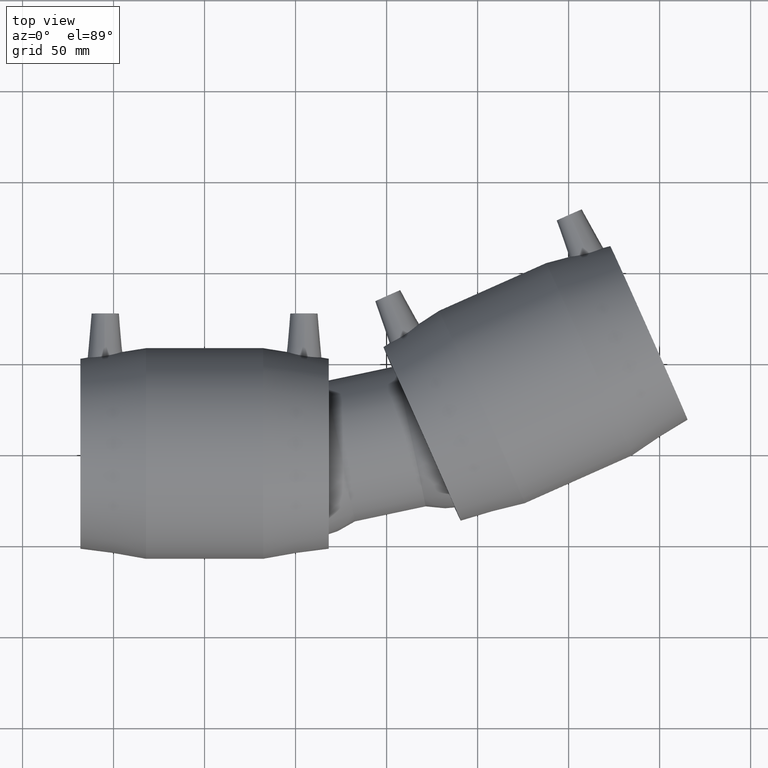
[diagram: clean part render]
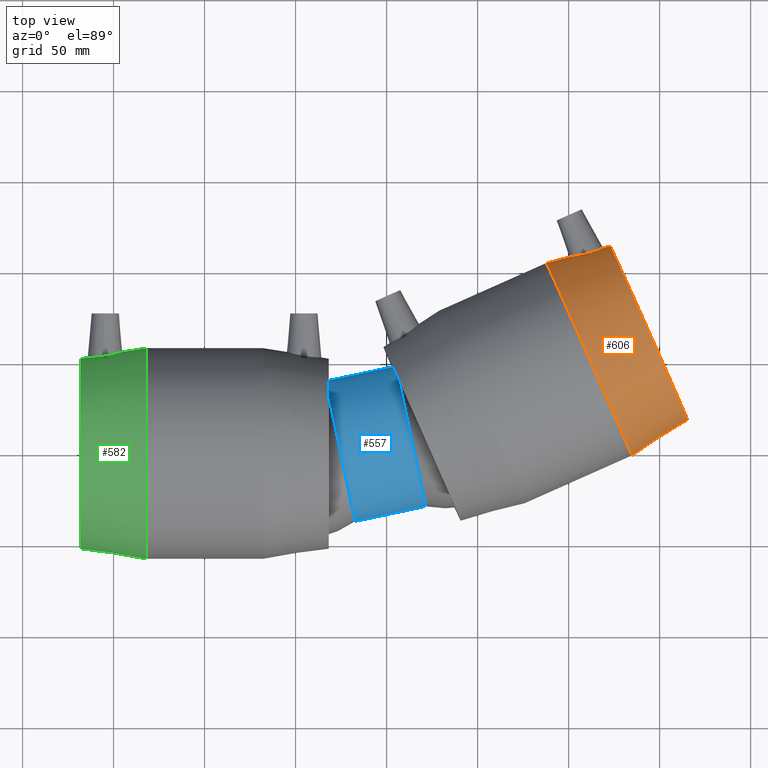
[diagram: same view with three faces highlighted in distinct colors, each labeled with its STEP entity id]
A machine part, top view with three faces highlighted in distinct colors.
Their STEP definitions:

[orange] entity #606 — the highlighted conical surface has half-angle 9.152 deg.
#24=CONICAL_SURFACE('',#710,55.1,9.15233904940198);
#113=FACE_BOUND('',#271,.T.);
#114=FACE_BOUND('',#272,.T.);
#168=FACE_OUTER_BOUND('',#270,.T.);
#270=EDGE_LOOP('',(#546));
#271=EDGE_LOOP('',(#547));
#272=EDGE_LOOP('',(#548));
#280=B_SPLINE_CURVE_WITH_KNOTS('',3,(#1328,#1329,#1330,#1331,#1332,#1333,
#1334,#1335,#1336,#1337,#1338,#1339,#1340,#1341,#1342,#1343,#1344,#1345,
#1346,#1347,#1348,#1349,#1350,#1351,#1352,#1353,#1354,#1355,#1356,#1357,
#1358,#1359,#1360,#1361),.UNSPECIFIED.,.T.,.F.,(4,2,2,2,2,2,2,2,2,2,2,2,
2,2,2,2,4),(0.,0.352228223604337,0.704456447208673,1.05741365981009,1.4103708724115,
1.76332808501292,2.11628529761434,2.46851352121867,2.82074174482301,3.19573183374223,
3.57072192266146,3.93684083698005,4.30295975129865,4.66907866561724,5.03519757993584,
5.41018766885506,5.78517775777429),.UNSPECIFIED.);
#320=CIRCLE('',#692,58.);
#328=CIRCLE('',#709,52.2);
#370=VERTEX_POINT('',#1327);
#372=VERTEX_POINT('',#1366);
#380=VERTEX_POINT('',#1391);
#426=EDGE_CURVE('',#370,#370,#280,.T.);
#428=EDGE_CURVE('',#372,#372,#320,.T.);
#436=EDGE_CURVE('',#380,#380,#328,.T.);
#546=ORIENTED_EDGE('',*,*,#428,.T.);
#547=ORIENTED_EDGE('',*,*,#426,.F.);
#548=ORIENTED_EDGE('',*,*,#436,.F.);
#606=ADVANCED_FACE('',(#168,#113,#114),#24,.T.);
#692=AXIS2_PLACEMENT_3D('',#1367,#879,#880);
#709=AXIS2_PLACEMENT_3D('',#1392,#913,#914);
#710=AXIS2_PLACEMENT_3D('',#1393,#915,#916);
#879=DIRECTION('center_axis',(0.913545457642601,0.406736643075801,1.19788532833232E-16));
#880=DIRECTION('ref_axis',(1.19788532833232E-16,2.54618386665284E-17,-1.));
#913=DIRECTION('center_axis',(0.913545457642601,0.406736643075801,1.19788532833232E-16));
#914=DIRECTION('ref_axis',(1.19788532833232E-16,2.54618386665284E-17,-1.));
#915=DIRECTION('center_axis',(-0.913545457642601,-0.406736643075801,-1.19788532833232E-16));
#916=DIRECTION('ref_axis',(-0.406736643075801,0.913545457642601,-2.54618386665283E-17));
#1327=CARTESIAN_POINT('',(210.268935986403,109.863778767938,9.54862179279035));
#1328=CARTESIAN_POINT('Ctrl Pts',(210.268935986403,109.863778767938,9.54862179279035));
#1329=CARTESIAN_POINT('Ctrl Pts',(211.402645501429,110.16729559249,9.51580139746883));
#1330=CARTESIAN_POINT('Ctrl Pts',(212.595884162368,110.530082493889,9.25257514912443));
#1331=CARTESIAN_POINT('Ctrl Pts',(214.75714171295,111.26703362368,8.24923013019716));
#1332=CARTESIAN_POINT('Ctrl Pts',(215.725824921136,111.63905258093,7.50896790895701));
#1333=CARTESIAN_POINT('Ctrl Pts',(217.238635819953,112.255616443648,5.81880290609338));
#1334=CARTESIAN_POINT('Ctrl Pts',(217.884557057786,112.541237804308,4.75475420289586));
#1335=CARTESIAN_POINT('Ctrl Pts',(218.735882694488,112.927832365528,2.43360579525665));
#1336=CARTESIAN_POINT('Ctrl Pts',(218.942247277366,113.026795702466,1.17652404200474));
#1337=CARTESIAN_POINT('Ctrl Pts',(218.942247277366,113.026795702466,-1.1765240420047));
#1338=CARTESIAN_POINT('Ctrl Pts',(218.735882694488,112.927832365528,-2.43360579525659));
#1339=CARTESIAN_POINT('Ctrl Pts',(217.884557057786,112.541237804308,-4.7547542028958));
#1340=CARTESIAN_POINT('Ctrl Pts',(217.238635819953,112.255616443648,-5.81880290609334));
#1341=CARTESIAN_POINT('Ctrl Pts',(215.725824921136,111.63905258093,-7.50896790895698));
#1342=CARTESIAN_POINT('Ctrl Pts',(214.75714171295,111.26703362368,-8.24923013019712));
#1343=CARTESIAN_POINT('Ctrl Pts',(212.595884162368,110.530082493889,-9.2525751491244));
#1344=CARTESIAN_POINT('Ctrl Pts',(211.402645501429,110.16729559249,-9.5158013974688));
#1345=CARTESIAN_POINT('Ctrl Pts',(209.061963338109,109.540647930032,-9.58356312382289));
#1346=CARTESIAN_POINT('Ctrl Pts',(207.759772970943,109.240863023696,-9.36352289397662));
#1347=CARTESIAN_POINT('Ctrl Pts',(205.334388855097,108.763767721013,-8.40402339335126));
#1348=CARTESIAN_POINT('Ctrl Pts',(204.21157426936,108.583911360961,-7.66487337951114));
#1349=CARTESIAN_POINT('Ctrl Pts',(202.442955007304,108.33260323336,-5.95855418812732));
#1350=CARTESIAN_POINT('Ctrl Pts',(201.671442020404,108.242184376137,-4.8847960574272));
#1351=CARTESIAN_POINT('Ctrl Pts',(200.639463364938,108.129812037129,-2.51594984170666));
#1352=CARTESIAN_POINT('Ctrl Pts',(200.380270928383,108.105987892986,-1.22039638106197));
#1353=CARTESIAN_POINT('Ctrl Pts',(200.380270928383,108.105987892986,1.22039638106199));
#1354=CARTESIAN_POINT('Ctrl Pts',(200.639463364938,108.129812037129,2.51594984170669));
#1355=CARTESIAN_POINT('Ctrl Pts',(201.671442020404,108.242184376137,4.88479605742724));
#1356=CARTESIAN_POINT('Ctrl Pts',(202.442955007304,108.33260323336,5.95855418812735));
#1357=CARTESIAN_POINT('Ctrl Pts',(204.21157426936,108.583911360961,7.66487337951117));
#1358=CARTESIAN_POINT('Ctrl Pts',(205.334388855097,108.763767721013,8.40402339335128));
#1359=CARTESIAN_POINT('Ctrl Pts',(207.759772970943,109.240863023696,9.36352289397665));
#1360=CARTESIAN_POINT('Ctrl Pts',(209.061963338109,109.540647930032,9.58356312382293));
#1361=CARTESIAN_POINT('Ctrl Pts',(210.268935986403,109.863778767938,9.54862179279034));
#1366=CARTESIAN_POINT('',(187.638317308141,104.728076850342,1.37619461224146E-14));
#1367=CARTESIAN_POINT('Origin',(211.229042606537,51.742440307071,1.52387327650733E-14));
#1391=CARTESIAN_POINT('',(222.885026313114,114.072032346744,1.82220119686768E-14));
#1392=CARTESIAN_POINT('Origin',(244.116679081671,66.3849594577998,1.95511199470696E-14));
#1393=CARTESIAN_POINT('Origin',(227.672860844104,59.0636998824354,1.73949263560714E-14));

[blue] entity #557 — the highlighted cylindrical surface (bore or boss wall) has radius 39.3602 mm, axis along (-0.9781, -0.2079, 0).
#45=CYLINDRICAL_SURFACE('',#619,39.3602213853872);
#67=FACE_BOUND('',#176,.T.);
#119=FACE_OUTER_BOUND('',#175,.T.);
#175=EDGE_LOOP('',(#447));
#176=EDGE_LOOP('',(#448));
#282=CIRCLE('',#611,39.3602213853872);
#285=CIRCLE('',#616,39.3602213853872);
#331=VERTEX_POINT('',#949);
#335=VERTEX_POINT('',#1051);
#383=EDGE_CURVE('',#331,#331,#282,.T.);
#388=EDGE_CURVE('',#335,#335,#285,.T.);
#447=ORIENTED_EDGE('',*,*,#388,.F.);
#448=ORIENTED_EDGE('',*,*,#383,.T.);
#557=ADVANCED_FACE('',(#119,#67),#45,.T.);
#611=AXIS2_PLACEMENT_3D('',#950,#717,#718);
#616=AXIS2_PLACEMENT_3D('',#1052,#727,#728);
#619=AXIS2_PLACEMENT_3D('',#1122,#733,#734);
#717=DIRECTION('center_axis',(-0.978147600733806,-0.20791169081776,0.));
#718=DIRECTION('ref_axis',(0.20791169081776,-0.978147600733806,0.));
#727=DIRECTION('center_axis',(-0.978147600733806,-0.20791169081776,0.));
#728=DIRECTION('ref_axis',(0.20791169081776,-0.978147600733806,0.));
#733=DIRECTION('center_axis',(-0.978147600733806,-0.20791169081776,0.));
#734=DIRECTION('ref_axis',(0.207911690817759,-0.978147600733806,0.));
#949=CARTESIAN_POINT('',(121.44770097479,-28.9214039091212,0.));
#950=CARTESIAN_POINT('Origin',(113.264250795592,9.57870220334673,0.));
#1051=CARTESIAN_POINT('',(82.628278042825,-37.1727269735541,0.));
#1052=CARTESIAN_POINT('Origin',(74.4448278636278,1.32737913891391,0.));
#1122=CARTESIAN_POINT('Origin',(103.559395062601,7.51587143723852,0.));

[green] entity #582 — the highlighted conical surface has half-angle 9.152 deg.
#19=CONICAL_SURFACE('',#665,55.1,9.15233904940198);
#90=FACE_BOUND('',#224,.T.);
#91=FACE_BOUND('',#225,.T.);
#144=FACE_OUTER_BOUND('',#223,.T.);
#223=EDGE_LOOP('',(#497));
#224=EDGE_LOOP('',(#498));
#225=EDGE_LOOP('',(#499));
#278=B_SPLINE_CURVE_WITH_KNOTS('',3,(#1194,#1195,#1196,#1197,#1198,#1199,
#1200,#1201,#1202,#1203,#1204,#1205,#1206,#1207,#1208,#1209,#1210,#1211,
#1212,#1213,#1214,#1215,#1216,#1217,#1218,#1219,#1220,#1221,#1222,#1223,
#1224,#1225,#1226,#1227),.UNSPECIFIED.,.T.,.F.,(4,2,2,2,2,2,2,2,2,2,2,2,
2,2,2,2,4),(0.,0.352228223604337,0.704456447208673,1.05741365981009,1.4103708724115,
1.76332808501292,2.11628529761434,2.46851352121867,2.82074174482301,3.19573183374223,
3.57072192266146,3.93684083698005,4.30295975129865,4.66907866561724,5.03519757993584,
5.41018766885506,5.78517775777429),.UNSPECIFIED.);
#299=CIRCLE('',#647,58.);
#307=CIRCLE('',#664,52.2);
#348=VERTEX_POINT('',#1193);
#350=VERTEX_POINT('',#1231);
#358=VERTEX_POINT('',#1256);
#403=EDGE_CURVE('',#348,#348,#278,.T.);
#405=EDGE_CURVE('',#350,#350,#299,.T.);
#413=EDGE_CURVE('',#358,#358,#307,.T.);
#497=ORIENTED_EDGE('',*,*,#405,.F.);
#498=ORIENTED_EDGE('',*,*,#403,.T.);
#499=ORIENTED_EDGE('',*,*,#413,.T.);
#582=ADVANCED_FACE('',(#144,#90,#91),#19,.T.);
#647=AXIS2_PLACEMENT_3D('',#1232,#789,#790);
#664=AXIS2_PLACEMENT_3D('',#1257,#823,#824);
#665=AXIS2_PLACEMENT_3D('',#1258,#825,#826);
#789=DIRECTION('center_axis',(1.,1.83697019872103E-16,0.));
#790=DIRECTION('ref_axis',(0.,0.,-1.));
#823=DIRECTION('center_axis',(1.,1.83697019872103E-16,0.));
#824=DIRECTION('ref_axis',(0.,0.,-1.));
#825=DIRECTION('center_axis',(1.,1.83697019872103E-16,0.));
#826=DIRECTION('ref_axis',(-2.02894640216501E-16,1.,0.));
#1193=CARTESIAN_POINT('',(-54.9629770549691,53.4869952867012,9.54862179279033));
#1194=CARTESIAN_POINT('Ctrl Pts',(-54.9629770549692,53.4869952867012,9.54862179279033));
#1195=CARTESIAN_POINT('Ctrl Pts',(-56.1221236470421,53.3031505007244,9.51580139746882));
#1196=CARTESIAN_POINT('Ctrl Pts',(-57.3597601320536,53.1492389392508,9.25257514912441));
#1197=CARTESIAN_POINT('Ctrl Pts',(-59.6339121788256,52.9434146554307,8.24923013019714));
#1198=CARTESIAN_POINT('Ctrl Pts',(-60.670162065391,52.8892719276818,7.508967908957));
#1199=CARTESIAN_POINT('Ctrl Pts',(-62.302962706042,52.8372154172208,5.81880290609336));
#1200=CARTESIAN_POINT('Ctrl Pts',(-63.0092137922849,52.8354236778899,4.75475420289584));
#1201=CARTESIAN_POINT('Ctrl Pts',(-63.9441806347299,52.8423300516058,2.43360579525663));
#1202=CARTESIAN_POINT('Ctrl Pts',(-64.1729560774903,52.8488015208488,1.17652404200472));
#1203=CARTESIAN_POINT('Ctrl Pts',(-64.1729560774903,52.8488015208488,-1.17652404200472));
#1204=CARTESIAN_POINT('Ctrl Pts',(-63.9441806347299,52.8423300516058,-2.43360579525661));
#1205=CARTESIAN_POINT('Ctrl Pts',(-63.009213792285,52.8354236778899,-4.75475420289582));
#1206=CARTESIAN_POINT('Ctrl Pts',(-62.302962706042,52.8372154172208,-5.81880290609335));
#1207=CARTESIAN_POINT('Ctrl Pts',(-60.670162065391,52.8892719276818,-7.50896790895699));
#1208=CARTESIAN_POINT('Ctrl Pts',(-59.6339121788256,52.9434146554307,-8.24923013019713));
#1209=CARTESIAN_POINT('Ctrl Pts',(-57.3597601320536,53.1492389392508,-9.25257514912441));
#1210=CARTESIAN_POINT('Ctrl Pts',(-56.1221236470421,53.3031505007244,-9.51580139746882));
#1211=CARTESIAN_POINT('Ctrl Pts',(-53.7289235223367,53.6827205807601,-9.58356312382291));
#1212=CARTESIAN_POINT('Ctrl Pts',(-52.4173799209787,53.9385019798939,-9.36352289397663));
#1213=CARTESIAN_POINT('Ctrl Pts',(-50.0076291370687,54.4891463267129,-8.40402339335127));
#1214=CARTESIAN_POINT('Ctrl Pts',(-48.9087328003708,54.7815292013589,-7.66487337951115));
#1215=CARTESIAN_POINT('Ctrl Pts',(-47.1908024830213,55.2713100644481,-5.95855418812734));
#1216=CARTESIAN_POINT('Ctrl Pts',(-46.4492136358688,55.5025109305279,-4.88479605742722));
#1217=CARTESIAN_POINT('Ctrl Pts',(-45.4607482748411,55.8195972247124,-2.51594984170668));
#1218=CARTESIAN_POINT('Ctrl Pts',(-45.2142740493585,55.9032558476034,-1.22039638106199));
#1219=CARTESIAN_POINT('Ctrl Pts',(-45.2142740493585,55.9032558476034,1.22039638106198));
#1220=CARTESIAN_POINT('Ctrl Pts',(-45.4607482748411,55.8195972247124,2.51594984170668));
#1221=CARTESIAN_POINT('Ctrl Pts',(-46.4492136358688,55.5025109305279,4.88479605742722));
#1222=CARTESIAN_POINT('Ctrl Pts',(-47.1908024830213,55.2713100644481,5.95855418812734));
#1223=CARTESIAN_POINT('Ctrl Pts',(-48.9087328003708,54.7815292013589,7.66487337951115));
#1224=CARTESIAN_POINT('Ctrl Pts',(-50.0076291370687,54.4891463267129,8.40402339335127));
#1225=CARTESIAN_POINT('Ctrl Pts',(-52.4173799209787,53.9385019798939,9.36352289397663));
#1226=CARTESIAN_POINT('Ctrl Pts',(-53.7289235223367,53.6827205807601,9.58356312382291));
#1227=CARTESIAN_POINT('Ctrl Pts',(-54.9629770549693,53.4869952867012,9.54862179279033));
#1231=CARTESIAN_POINT('',(-32.2,58.,0.));
#1232=CARTESIAN_POINT('Origin',(-32.2,6.61309271539571E-15,0.));
#1256=CARTESIAN_POINT('',(-68.2,52.2,0.));
#1257=CARTESIAN_POINT('Origin',(-68.2,1.97215226305253E-30,0.));
#1258=CARTESIAN_POINT('Origin',(-50.2,3.30654635769786E-15,0.));